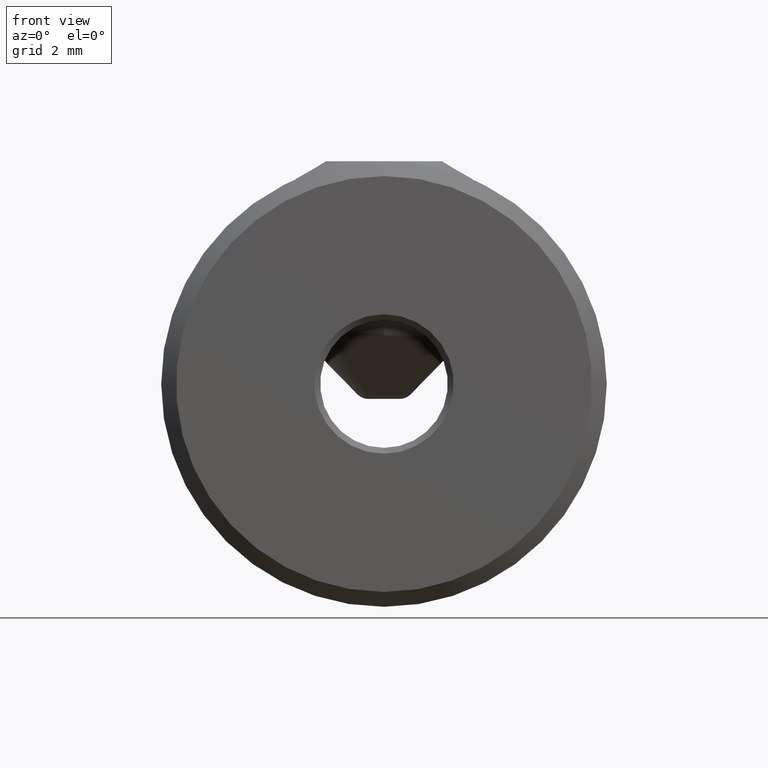
[diagram: clean part render]
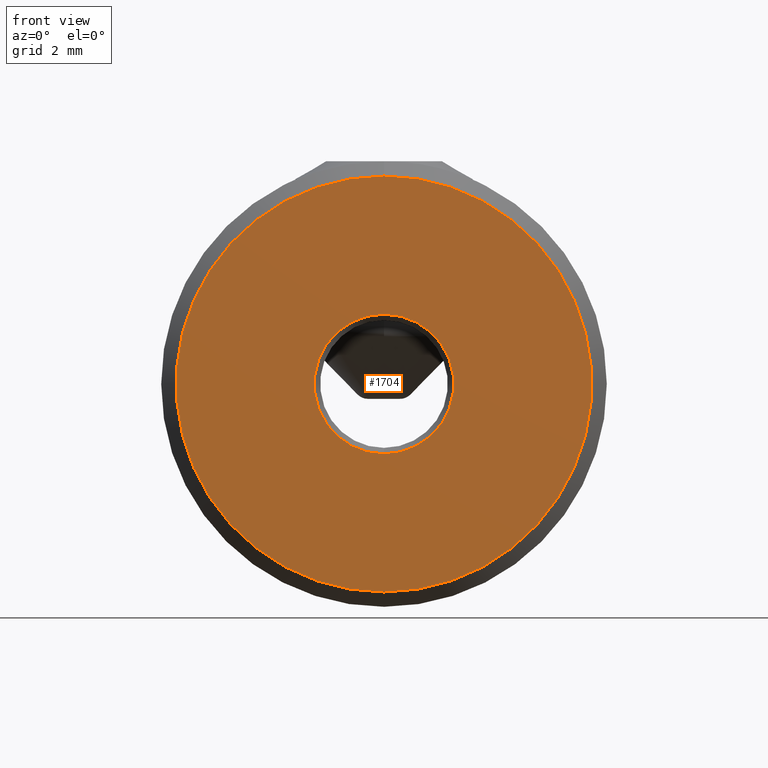
[diagram: same view with one face highlighted and labeled with its STEP entity id]
A machine part, front view. The second image highlights one B-rep face of the part: STEP entity #1704.
In plain terms, the highlighted planar face has unit normal (0, 1, 0).
Its self-contained STEP definition (entity closure, byte-faithful):
#171 = AXIS2_PLACEMENT_3D ( 'NONE', #10399, #14114, #11799 ) ;
#261 = DIRECTION ( 'NONE',  ( 0.0000000000000000000, 1.000000000000000000, 0.0000000000000000000 ) ) ;
#441 = FACE_OUTER_BOUND ( 'NONE', #9655, .T. ) ;
#708 = ORIENTED_EDGE ( 'NONE', *, *, #10928, .T. ) ;
#827 = CARTESIAN_POINT ( 'NONE',  ( 2.877919977996277900E-016, -6.250000000000000000, 2.349999999999997900 ) ) ;
#1358 = VERTEX_POINT ( 'NONE', #3678 ) ;
#1704 = ADVANCED_FACE ( 'NONE', ( #3666, #441 ), #13414, .F. ) ;
#2244 = VERTEX_POINT ( 'NONE', #6543 ) ;
#2663 = DIRECTION ( 'NONE',  ( 0.0000000000000000000, 1.000000000000000000, 0.0000000000000000000 ) ) ;
#3102 = EDGE_CURVE ( 'NONE', #11004, #1358, #13639, .T. ) ;
#3406 = CIRCLE ( 'NONE', #14055, 6.999999999999998200 ) ;
#3666 = FACE_BOUND ( 'NONE', #10509, .T. ) ;
#3678 = CARTESIAN_POINT ( 'NONE',  ( 0.0000000000000000000, -6.250000000000000000, 6.999999999999998200 ) ) ;
#3733 = ORIENTED_EDGE ( 'NONE', *, *, #13843, .T. ) ;
#3901 = DIRECTION ( 'NONE',  ( 0.0000000000000000000, -0.0000000000000000000, 1.000000000000000000 ) ) ;
#5049 = DIRECTION ( 'NONE',  ( -0.0000000000000000000, -1.000000000000000000, -0.0000000000000000000 ) ) ;
#5300 = CARTESIAN_POINT ( 'NONE',  ( 0.0000000000000000000, -6.250000000000000000, 0.0000000000000000000 ) ) ;
#5724 = CARTESIAN_POINT ( 'NONE',  ( 0.0000000000000000000, -6.250000000000000000, 0.0000000000000000000 ) ) ;
#5995 = DIRECTION ( 'NONE',  ( 0.0000000000000000000, 0.0000000000000000000, 1.000000000000000000 ) ) ;
#6443 = AXIS2_PLACEMENT_3D ( 'NONE', #12270, #2663, #12321 ) ;
#6543 = CARTESIAN_POINT ( 'NONE',  ( 0.0000000000000000000, -6.250000000000000000, -2.349999999999997900 ) ) ;
#6761 = AXIS2_PLACEMENT_3D ( 'NONE', #5724, #15417, #5995 ) ;
#7967 = EDGE_CURVE ( 'NONE', #8071, #2244, #8044, .T. ) ;
#8044 = CIRCLE ( 'NONE', #171, 2.349999999999997900 ) ;
#8071 = VERTEX_POINT ( 'NONE', #827 ) ;
#9655 = EDGE_LOOP ( 'NONE', ( #3733, #12281 ) ) ;
#9938 = CARTESIAN_POINT ( 'NONE',  ( 8.878689293818310100E-016, -6.250000000000000000, -6.999999999999998200 ) ) ;
#10399 = CARTESIAN_POINT ( 'NONE',  ( 0.0000000000000000000, -6.250000000000000000, 0.0000000000000000000 ) ) ;
#10509 = EDGE_LOOP ( 'NONE', ( #708, #15563 ) ) ;
#10928 = EDGE_CURVE ( 'NONE', #2244, #8071, #12446, .T. ) ;
#11004 = VERTEX_POINT ( 'NONE', #9938 ) ;
#11799 = DIRECTION ( 'NONE',  ( 0.0000000000000000000, 0.0000000000000000000, 1.000000000000000000 ) ) ;
#12176 = CARTESIAN_POINT ( 'NONE',  ( 0.0000000000000000000, -6.250000000000000000, 0.0000000000000000000 ) ) ;
#12270 = CARTESIAN_POINT ( 'NONE',  ( 0.0000000000000000000, -6.250000000000000000, 0.0000000000000000000 ) ) ;
#12281 = ORIENTED_EDGE ( 'NONE', *, *, #3102, .T. ) ;
#12321 = DIRECTION ( 'NONE',  ( 0.0000000000000000000, 0.0000000000000000000, 1.000000000000000000 ) ) ;
#12446 = CIRCLE ( 'NONE', #6443, 2.349999999999997900 ) ;
#13414 = PLANE ( 'NONE',  #15457 ) ;
#13639 = CIRCLE ( 'NONE', #6761, 6.999999999999998200 ) ;
#13769 = DIRECTION ( 'NONE',  ( 0.0000000000000000000, 0.0000000000000000000, 1.000000000000000000 ) ) ;
#13843 = EDGE_CURVE ( 'NONE', #1358, #11004, #3406, .T. ) ;
#14055 = AXIS2_PLACEMENT_3D ( 'NONE', #5300, #5049, #13769 ) ;
#14114 = DIRECTION ( 'NONE',  ( 0.0000000000000000000, 1.000000000000000000, 0.0000000000000000000 ) ) ;
#15417 = DIRECTION ( 'NONE',  ( -0.0000000000000000000, -1.000000000000000000, -0.0000000000000000000 ) ) ;
#15457 = AXIS2_PLACEMENT_3D ( 'NONE', #12176, #261, #3901 ) ;
#15563 = ORIENTED_EDGE ( 'NONE', *, *, #7967, .T. ) ;